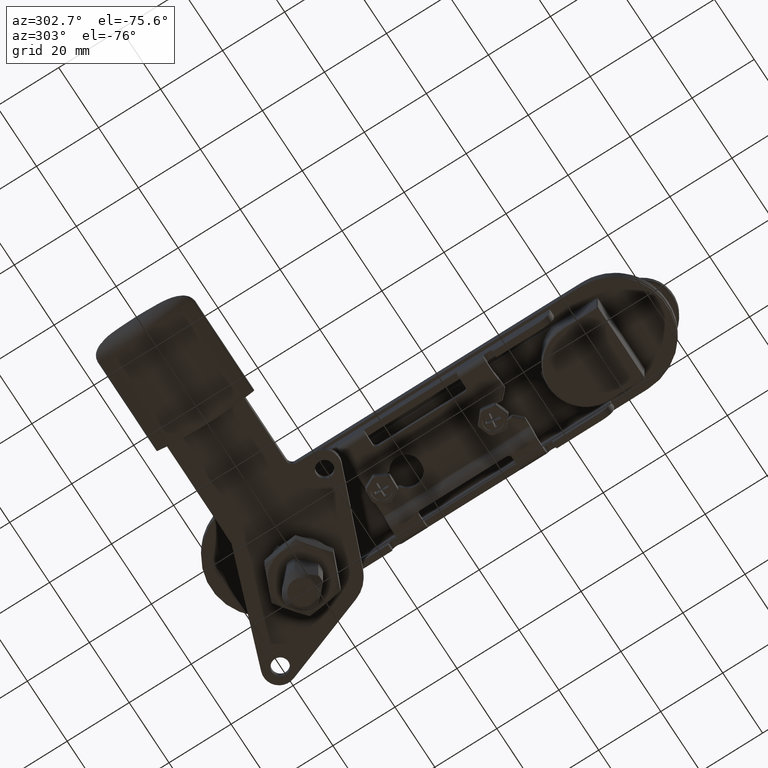
[diagram: clean part render]
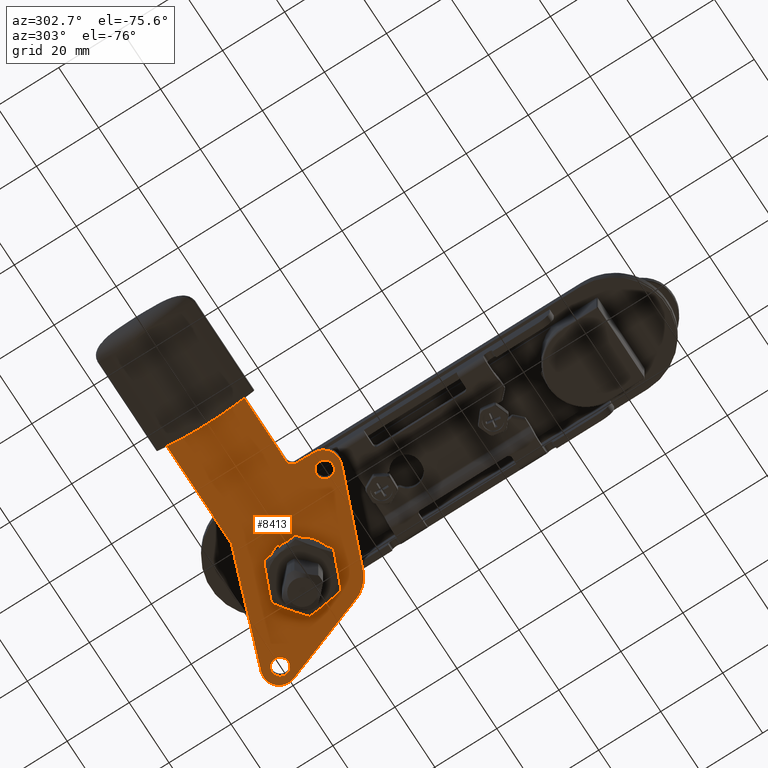
[diagram: same view with one face highlighted and labeled with its STEP entity id]
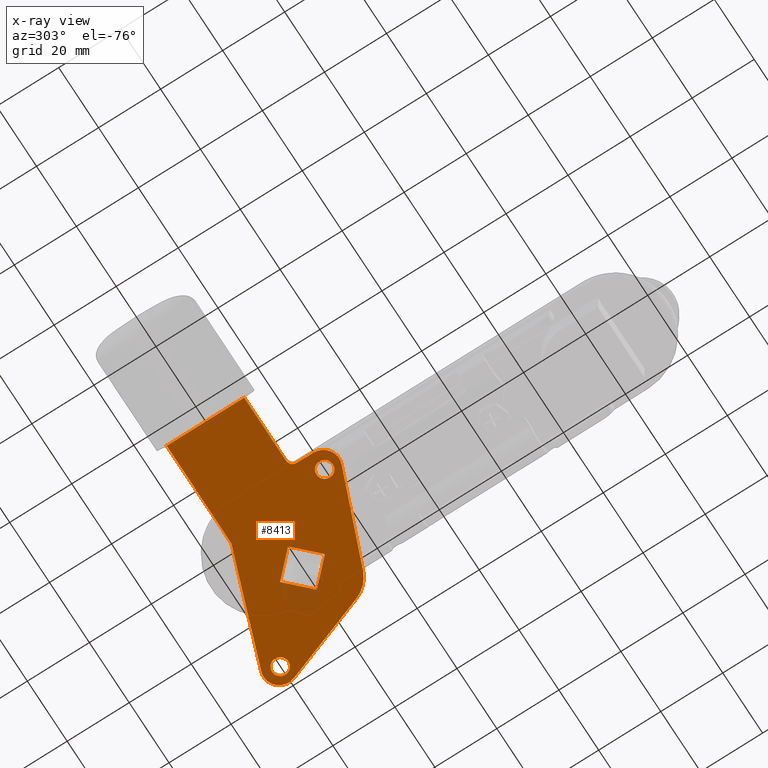
[diagram: x-ray of the same camera — body ghosted, the highlighted face saturated]
A machine part, auxiliary view. The second image highlights one B-rep face of the part: STEP entity #8413.
The next image is the same camera in x-ray: the body ghosted, the highlighted face saturated — about 3% of this face is hidden behind the body in this view.
In plain terms, the highlighted planar face has unit normal (-0, 0, -1).
Its self-contained STEP definition (entity closure, byte-faithful):
#669=FACE_BOUND('',#2089,.T.);
#670=FACE_BOUND('',#2090,.T.);
#671=FACE_BOUND('',#2091,.T.);
#1034=CIRCLE('',#9242,2.65);
#1036=CIRCLE('',#9245,2.65);
#1047=CIRCLE('',#9265,5.);
#1048=CIRCLE('',#9266,10.);
#1049=CIRCLE('',#9267,5.);
#1050=CIRCLE('',#9268,2.);
#1526=FACE_OUTER_BOUND('',#2088,.T.);
#2088=EDGE_LOOP('',(#7572,#7573,#7574,#7575,#7576,#7577,#7578,#7579,#7580,
#7581,#7582));
#2089=EDGE_LOOP('',(#7583));
#2090=EDGE_LOOP('',(#7584));
#2091=EDGE_LOOP('',(#7585,#7586,#7587,#7588));
#2672=LINE('',#16780,#3282);
#2675=LINE('',#16787,#3285);
#2676=LINE('',#16789,#3286);
#2677=LINE('',#16793,#3287);
#2678=LINE('',#16797,#3288);
#2679=LINE('',#16801,#3289);
#2680=LINE('',#16804,#3290);
#2681=LINE('',#16807,#3291);
#2682=LINE('',#16809,#3292);
#2683=LINE('',#16811,#3293);
#2684=LINE('',#16812,#3294);
#3282=VECTOR('',#11487,25.);
#3285=VECTOR('',#11496,32.5);
#3286=VECTOR('',#11497,36.7166748873887);
#3287=VECTOR('',#11500,27.9208950322635);
#3288=VECTOR('',#11503,30.2995901774016);
#3289=VECTOR('',#11506,5.64112833851284);
#3290=VECTOR('',#11509,21.0396078823608);
#3291=VECTOR('',#11510,10.2);
#3292=VECTOR('',#11511,10.2);
#3293=VECTOR('',#11512,10.2);
#3294=VECTOR('',#11513,10.2);
#4061=VERTEX_POINT('',#16482);
#4063=VERTEX_POINT('',#16487);
#4076=VERTEX_POINT('',#16777);
#4077=VERTEX_POINT('',#16779);
#4078=VERTEX_POINT('',#16786);
#4079=VERTEX_POINT('',#16788);
#4080=VERTEX_POINT('',#16790);
#4081=VERTEX_POINT('',#16792);
#4082=VERTEX_POINT('',#16794);
#4083=VERTEX_POINT('',#16796);
#4084=VERTEX_POINT('',#16798);
#4085=VERTEX_POINT('',#16800);
#4086=VERTEX_POINT('',#16802);
#4087=VERTEX_POINT('',#16805);
#4088=VERTEX_POINT('',#16806);
#4089=VERTEX_POINT('',#16808);
#4090=VERTEX_POINT('',#16810);
#5228=EDGE_CURVE('',#4061,#4061,#1034,.T.);
#5230=EDGE_CURVE('',#4063,#4063,#1036,.T.);
#5250=EDGE_CURVE('',#4077,#4076,#2672,.T.);
#5253=EDGE_CURVE('',#4076,#4078,#2675,.T.);
#5254=EDGE_CURVE('',#4078,#4079,#2676,.T.);
#5255=EDGE_CURVE('',#4079,#4080,#1047,.T.);
#5256=EDGE_CURVE('',#4080,#4081,#2677,.T.);
#5257=EDGE_CURVE('',#4081,#4082,#1048,.T.);
#5258=EDGE_CURVE('',#4082,#4083,#2678,.T.);
#5259=EDGE_CURVE('',#4083,#4084,#1049,.T.);
#5260=EDGE_CURVE('',#4084,#4085,#2679,.T.);
#5261=EDGE_CURVE('',#4085,#4086,#1050,.T.);
#5262=EDGE_CURVE('',#4086,#4077,#2680,.T.);
#5263=EDGE_CURVE('',#4087,#4088,#2681,.T.);
#5264=EDGE_CURVE('',#4088,#4089,#2682,.T.);
#5265=EDGE_CURVE('',#4089,#4090,#2683,.T.);
#5266=EDGE_CURVE('',#4090,#4087,#2684,.T.);
#7572=ORIENTED_EDGE('',*,*,#5250,.T.);
#7573=ORIENTED_EDGE('',*,*,#5253,.T.);
#7574=ORIENTED_EDGE('',*,*,#5254,.T.);
#7575=ORIENTED_EDGE('',*,*,#5255,.T.);
#7576=ORIENTED_EDGE('',*,*,#5256,.T.);
#7577=ORIENTED_EDGE('',*,*,#5257,.T.);
#7578=ORIENTED_EDGE('',*,*,#5258,.T.);
#7579=ORIENTED_EDGE('',*,*,#5259,.T.);
#7580=ORIENTED_EDGE('',*,*,#5260,.T.);
#7581=ORIENTED_EDGE('',*,*,#5261,.T.);
#7582=ORIENTED_EDGE('',*,*,#5262,.T.);
#7583=ORIENTED_EDGE('',*,*,#5228,.T.);
#7584=ORIENTED_EDGE('',*,*,#5230,.T.);
#7585=ORIENTED_EDGE('',*,*,#5263,.T.);
#7586=ORIENTED_EDGE('',*,*,#5264,.T.);
#7587=ORIENTED_EDGE('',*,*,#5265,.T.);
#7588=ORIENTED_EDGE('',*,*,#5266,.T.);
#7928=PLANE('',#9264);
#8413=ADVANCED_FACE('',(#1526,#669,#670,#671),#7928,.T.);
#9242=AXIS2_PLACEMENT_3D('',#16483,#11442,#11443);
#9245=AXIS2_PLACEMENT_3D('',#16488,#11448,#11449);
#9264=AXIS2_PLACEMENT_3D('',#16785,#11494,#11495);
#9265=AXIS2_PLACEMENT_3D('',#16791,#11498,#11499);
#9266=AXIS2_PLACEMENT_3D('',#16795,#11501,#11502);
#9267=AXIS2_PLACEMENT_3D('',#16799,#11504,#11505);
#9268=AXIS2_PLACEMENT_3D('',#16803,#11507,#11508);
#11442=DIRECTION('center_axis',(0.,0.,-1.));
#11443=DIRECTION('ref_axis',(1.,0.,0.));
#11448=DIRECTION('center_axis',(0.,0.,-1.));
#11449=DIRECTION('ref_axis',(1.,0.,0.));
#11487=DIRECTION('',(0.,1.,0.));
#11494=DIRECTION('center_axis',(0.,0.,1.));
#11495=DIRECTION('ref_axis',(1.,0.,0.));
#11496=DIRECTION('',(-1.,-7.22096276178964E-17,0.));
#11497=DIRECTION('',(-0.939692620785909,0.342020143325668,0.));
#11498=DIRECTION('center_axis',(0.,0.,1.));
#11499=DIRECTION('ref_axis',(-0.342020143325668,-0.939692620785909,0.));
#11500=DIRECTION('',(0.342020143325669,-0.939692620785908,0.));
#11501=DIRECTION('center_axis',(0.,0.,1.));
#11502=DIRECTION('ref_axis',(0.939692620785908,0.342020143325669,0.));
#11503=DIRECTION('',(0.92936312028642,-0.369166887263049,0.));
#11504=DIRECTION('center_axis',(0.,0.,1.));
#11505=DIRECTION('ref_axis',(0.36916688726305,0.92936312028642,0.));
#11506=DIRECTION('',(0.0199999999999995,0.999799979995999,0.));
#11507=DIRECTION('center_axis',(0.,0.,-1.));
#11508=DIRECTION('ref_axis',(0.,1.,0.));
#11509=DIRECTION('',(1.,1.33121309891381E-16,0.));
#11510=DIRECTION('',(0.707106781186548,-0.707106781186547,0.));
#11511=DIRECTION('',(-0.707106781186547,-0.707106781186548,0.));
#11512=DIRECTION('',(-0.707106781186548,0.707106781186547,0.));
#11513=DIRECTION('',(0.707106781186548,0.707106781186548,0.));
#16482=CARTESIAN_POINT('',(-17.35,20.,1.45));
#16483=CARTESIAN_POINT('Origin',(-20.,20.,1.45));
#16487=CARTESIAN_POINT('',(22.65,-20.,1.45));
#16488=CARTESIAN_POINT('Origin',(20.,-20.,1.45));
#16777=CARTESIAN_POINT('',(48.7124891681028,12.5,1.45));
#16779=CARTESIAN_POINT('',(48.7124891681028,-12.5,1.45));
#16780=CARTESIAN_POINT('',(48.7124891681028,0.457730549759642,1.45));
#16785=CARTESIAN_POINT('Origin',(27.191152987489,0.915461099519278,1.45));
#16786=CARTESIAN_POINT('',(16.2124891681028,12.5,1.45));
#16787=CARTESIAN_POINT('',(16.2124891681028,12.5,1.45));
#16788=CARTESIAN_POINT('',(-18.2898992833717,25.0578424074266,1.45));
#16789=CARTESIAN_POINT('',(-18.2898992833717,25.0578424074266,1.45));
#16790=CARTESIAN_POINT('',(-24.6984631039295,18.6492785868688,1.45));
#16791=CARTESIAN_POINT('Origin',(-20.,20.3593793034971,1.45));
#16792=CARTESIAN_POINT('',(-15.1489545832138,-7.58778044068718,1.45));
#16793=CARTESIAN_POINT('',(-15.1489545832138,-7.58778044068717,1.45));
#16794=CARTESIAN_POINT('',(-9.44369724798521,-13.4612102102947,1.45));
#16795=CARTESIAN_POINT('Origin',(-5.75202837535472,-4.16757900743048,1.45));
#16796=CARTESIAN_POINT('',(18.7156244226845,-24.6468156014321,1.45));
#16797=CARTESIAN_POINT('',(18.7156244226845,-24.6468156014321,1.45));
#16798=CARTESIAN_POINT('',(25.5604587589798,-20.1,1.45));
#16799=CARTESIAN_POINT('Origin',(20.5614588589998,-20.,1.45));
#16800=CARTESIAN_POINT('',(25.67328132575,-14.46,1.45));
#16801=CARTESIAN_POINT('',(25.67328132575,-14.46,1.45));
#16802=CARTESIAN_POINT('',(27.672881285742,-12.5,1.45));
#16803=CARTESIAN_POINT('Origin',(27.672881285742,-14.5,1.45));
#16804=CARTESIAN_POINT('',(77.7124891681028,-12.5,1.45));
#16805=CARTESIAN_POINT('',(-1.11022302462516E-15,7.21248916810278,1.45));
#16806=CARTESIAN_POINT('',(7.21248916810279,4.40619762898109E-15,1.45));
#16807=CARTESIAN_POINT('',(11.9782898480695,-4.76580067996674,1.45));
#16808=CARTESIAN_POINT('',(-1.11022302462516E-15,-7.21248916810278,1.45));
#16809=CARTESIAN_POINT('',(8.82977581377777,1.61728664567499,1.45));
#16810=CARTESIAN_POINT('',(-7.21248916810279,-6.59194920871187E-16,1.45));
#16811=CARTESIAN_POINT('',(1.15955609591535,-8.37204526401813,1.45));
#16812=CARTESIAN_POINT('',(5.22353122972638,12.4360203978292,1.45));